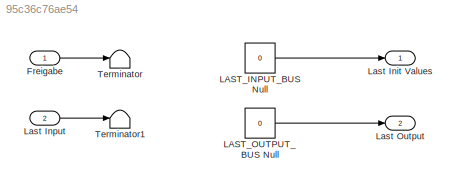
MODEL slx_95c36c76ae54
KIND model
BLOCK [Inport] Freigabe
  IconDisplay = Port number
  OutDataTypeStr = boolean
BLOCK [Constant] LAST_INPUT_BUS Null
  OutDataTypeStr = Bus: LAST_INPUT_BUS
  SampleTime = -1
  Value = 0
BLOCK [Constant] LAST_OUTPUT_BUS Null
  OutDataTypeStr = Bus: LAST_OUTPUT_BUS
  SampleTime = -1
  Value = 0
BLOCK [Outport] Last Init Values
  BusOutputAsStruct = on
  IconDisplay = Port number
  OutDataTypeStr = Bus: LAST_INPUT_BUS
BLOCK [Inport] Last Input
  BusOutputAsStruct = on
  IconDisplay = Port number
  OutDataTypeStr = Bus: LAST_INPUT_BUS
  Port = 2
BLOCK [Outport] Last Output
  BusOutputAsStruct = on
  IconDisplay = Port number
  OutDataTypeStr = Bus: LAST_OUTPUT_BUS
  Port = 2
BLOCK [Terminator] Terminator
BLOCK [Terminator] Terminator1
LINE Freigabe:1 -> Terminator:1
LINE LAST_INPUT_BUS Null:1 -> Last Init Values:1
LINE LAST_OUTPUT_BUS Null:1 -> Last Output:1
LINE Last Input:1 -> Terminator1:1
